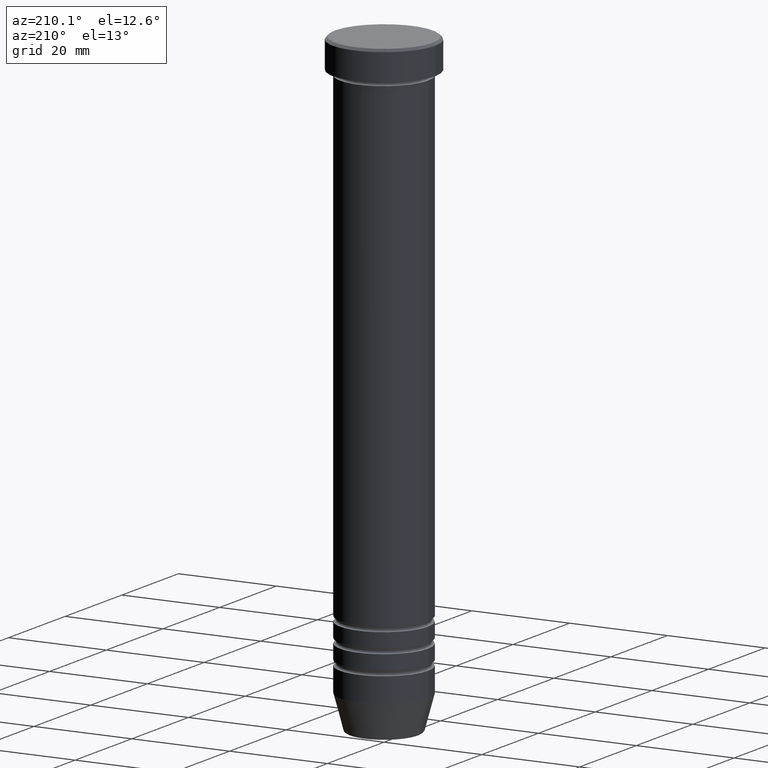
[diagram: clean part render]
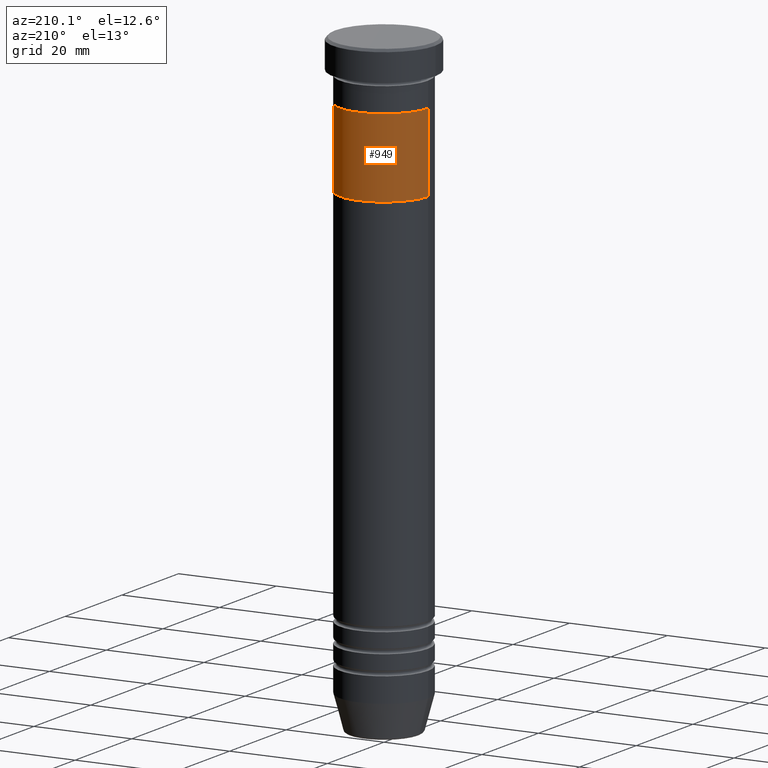
[diagram: same view with one face highlighted and labeled with its STEP entity id]
A machine part, auxiliary view. The second image highlights one B-rep face of the part: STEP entity #949.
In plain terms, the highlighted cylindrical surface (partial cylindrical patch) has radius 9 mm, axis along (-0, -0, 1).
Its self-contained STEP definition (entity closure, byte-faithful):
#32 = VECTOR ( 'NONE', #974, 1000.000000000000000 ) ;
#37 = EDGE_CURVE ( 'NONE', #118, #447, #779, .T. ) ;
#46 = FACE_OUTER_BOUND ( 'NONE', #153, .T. ) ;
#52 = DIRECTION ( 'NONE',  ( 1.000000000000000000, 0.000000000000000000, 0.000000000000000000 ) ) ;
#58 = AXIS2_PLACEMENT_3D ( 'NONE', #260, #607, #700 ) ;
#93 = EDGE_CURVE ( 'NONE', #484, #317, #937, .T. ) ;
#101 = CIRCLE ( 'NONE', #58, 9.000000000000000000 ) ;
#118 = VERTEX_POINT ( 'NONE', #667 ) ;
#153 = EDGE_LOOP ( 'NONE', ( #205, #221, #563, #647 ) ) ;
#171 = AXIS2_PLACEMENT_3D ( 'NONE', #495, #769, #662 ) ;
#178 = CARTESIAN_POINT ( 'NONE',  ( 9.000000000000000000, 0.000000000000000000, -12.00000000000000000 ) ) ;
#205 = ORIENTED_EDGE ( 'NONE', *, *, #971, .F. ) ;
#221 = ORIENTED_EDGE ( 'NONE', *, *, #93, .T. ) ;
#225 = CYLINDRICAL_SURFACE ( 'NONE', #438, 9.000000000000000000 ) ;
#260 = CARTESIAN_POINT ( 'NONE',  ( 0.000000000000000000, 0.000000000000000000, -28.00000000000000000 ) ) ;
#267 = CARTESIAN_POINT ( 'NONE',  ( 9.000000000000000000, 0.000000000000000000, -28.00000000000000000 ) ) ;
#317 = VERTEX_POINT ( 'NONE', #705 ) ;
#438 = AXIS2_PLACEMENT_3D ( 'NONE', #568, #842, #52 ) ;
#447 = VERTEX_POINT ( 'NONE', #178 ) ;
#484 = VERTEX_POINT ( 'NONE', #521 ) ;
#495 = CARTESIAN_POINT ( 'NONE',  ( 0.000000000000000000, 0.000000000000000000, -12.00000000000000000 ) ) ;
#521 = CARTESIAN_POINT ( 'NONE',  ( -9.000000000000000000, 1.102182119232617714E-15, -28.00000000000000000 ) ) ;
#563 = ORIENTED_EDGE ( 'NONE', *, *, #725, .T. ) ;
#568 = CARTESIAN_POINT ( 'NONE',  ( 0.000000000000000000, 0.000000000000000000, -28.00000000000000000 ) ) ;
#607 = DIRECTION ( 'NONE',  ( 0.000000000000000000, 0.000000000000000000, -1.000000000000000000 ) ) ;
#647 = ORIENTED_EDGE ( 'NONE', *, *, #37, .F. ) ;
#654 = DIRECTION ( 'NONE',  ( -0.000000000000000000, -0.000000000000000000, 1.000000000000000000 ) ) ;
#662 = DIRECTION ( 'NONE',  ( -1.000000000000000000, 0.000000000000000000, 0.000000000000000000 ) ) ;
#667 = CARTESIAN_POINT ( 'NONE',  ( 9.000000000000000000, 0.000000000000000000, -28.00000000000000000 ) ) ;
#700 = DIRECTION ( 'NONE',  ( -1.000000000000000000, 0.000000000000000000, 0.000000000000000000 ) ) ;
#705 = CARTESIAN_POINT ( 'NONE',  ( -9.000000000000000000, 1.102182119232617714E-15, -12.00000000000000000 ) ) ;
#725 = EDGE_CURVE ( 'NONE', #317, #447, #1137, .T. ) ;
#769 = DIRECTION ( 'NONE',  ( 0.000000000000000000, 0.000000000000000000, -1.000000000000000000 ) ) ;
#779 = LINE ( 'NONE', #267, #32 ) ;
#842 = DIRECTION ( 'NONE',  ( -0.000000000000000000, -0.000000000000000000, 1.000000000000000000 ) ) ;
#860 = CARTESIAN_POINT ( 'NONE',  ( -9.000000000000000000, 1.102182119232617714E-15, -28.00000000000000000 ) ) ;
#869 = VECTOR ( 'NONE', #654, 1000.000000000000000 ) ;
#937 = LINE ( 'NONE', #860, #869 ) ;
#949 = ADVANCED_FACE ( 'NONE', ( #46 ), #225, .T. ) ;
#971 = EDGE_CURVE ( 'NONE', #484, #118, #101, .T. ) ;
#974 = DIRECTION ( 'NONE',  ( -0.000000000000000000, -0.000000000000000000, 1.000000000000000000 ) ) ;
#1137 = CIRCLE ( 'NONE', #171, 9.000000000000000000 ) ;